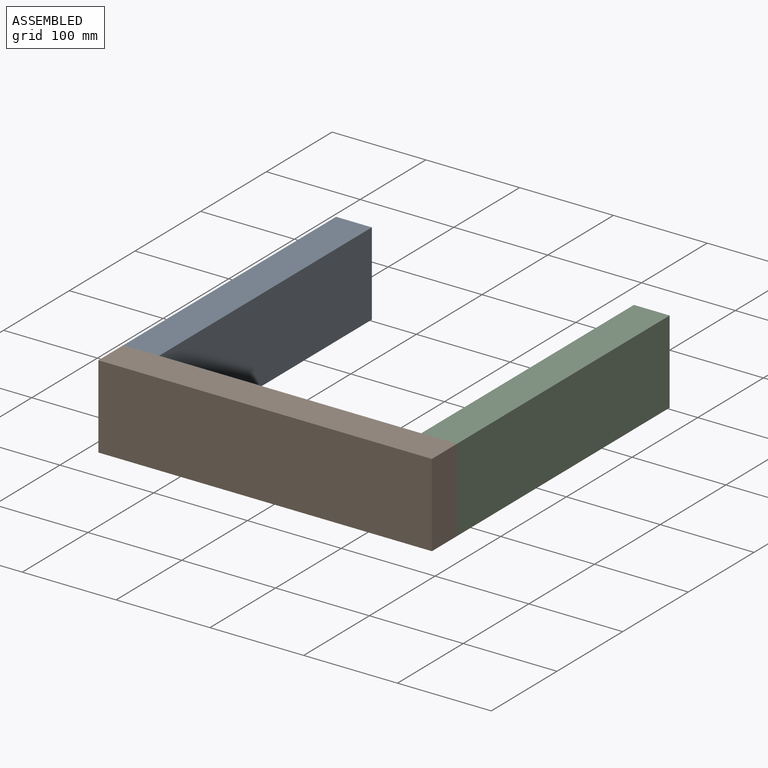
[diagram: assembled view]
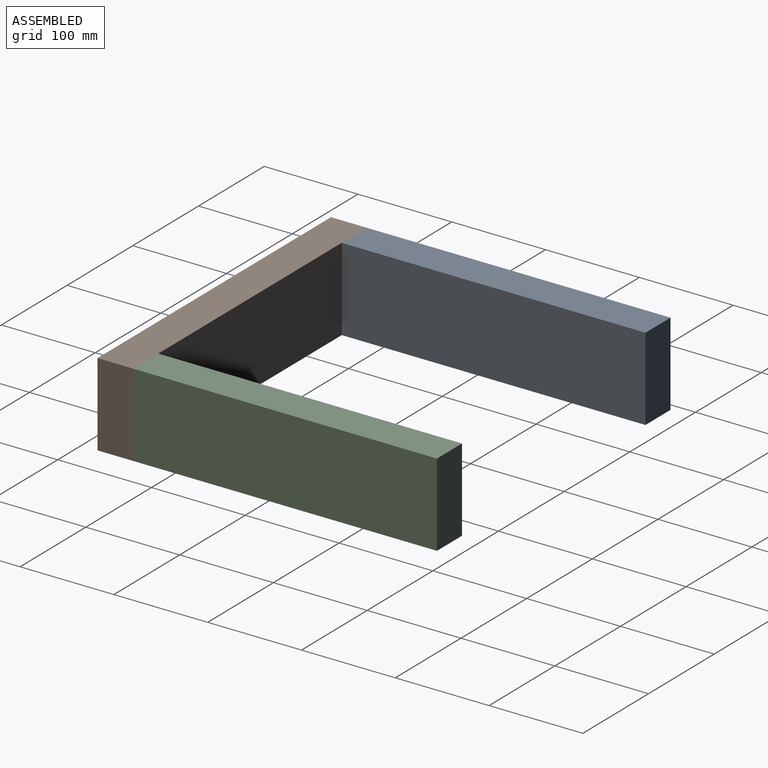
[diagram: assembled view, second angle]
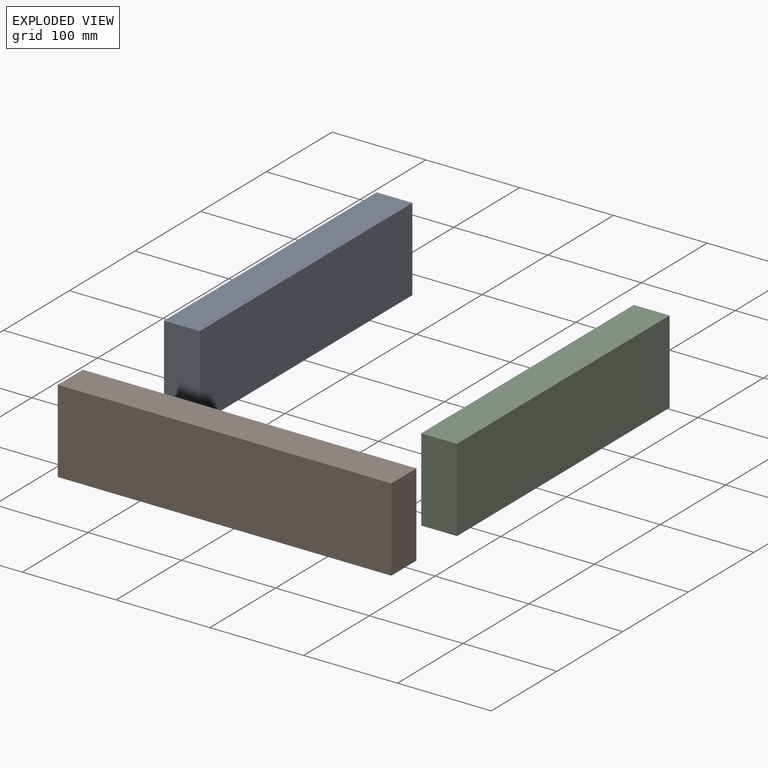
[diagram: exploded view]
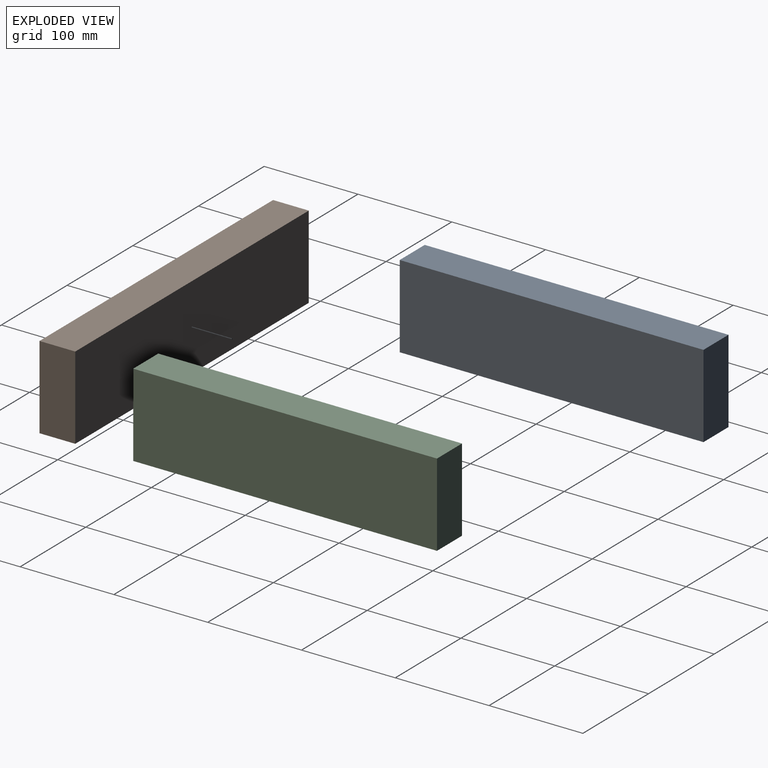
[diagram: exploded view, second angle]
ASSEMBLY  parts=3 mates=2
PART A: 6 faces, bbox 38.1x323.9x88.9 mm
  f0: plane 323.85x38.1mm, normal (0,0,1), area 12338.7mm2, adj f1,f3,f4,f5
  f1: plane 88.9x38.1mm, normal (0,-1,0), area 3387.1mm2, adj f0,f2,f3,f4
  f2: plane 323.85x38.1mm, normal (0,0,-1), area 12338.7mm2, adj f1,f3,f4,f5
  f3: plane 323.85x88.9mm, normal (1,0,0), area 28790.3mm2, adj f0,f1,f2,f5
  f4: plane 323.85x88.9mm, normal (-1,0,0), area 28790.3mm2, adj f0,f1,f2,f5
  f5: plane 88.9x38.1mm, normal (0,1,0), area 3387.1mm2, adj f0,f2,f3,f4
PART B: 6 faces, bbox 355.6x38.1x88.9 mm
  f0: plane 355.6x38.1mm, normal (0,0,1), area 13548.4mm2, adj f1,f3,f4,f5
  f1: plane 355.6x88.9mm, normal (0,-1,0), area 31612.8mm2, adj f0,f2,f3,f4
  f2: plane 355.6x38.1mm, normal (0,0,-1), area 13548.4mm2, adj f1,f3,f4,f5
  f3: plane 88.9x38.1mm, normal (1,0,0), area 3387.1mm2, adj f0,f1,f2,f5
  f4: plane 88.9x38.1mm, normal (-1,0,0), area 3387.1mm2, adj f0,f1,f2,f5
  f5: plane 355.6x88.9mm, normal (0,1,0), area 31612.8mm2, adj f0,f2,f3,f4
PART C: same geometry as A
PLACE A t=(374.65,88.9,0)mm
PLACE B at identity fixed
PLACE C t=(692.15,88.9,0)mm
MATE fastened A.f1 <-> B.f5  axis (0,-1,0) through (-177.8,-234.95,88.9)mm
MATE fastened B.f5 <-> C.f1  axis (0,1,0) through (177.8,-234.95,88.9)mm
